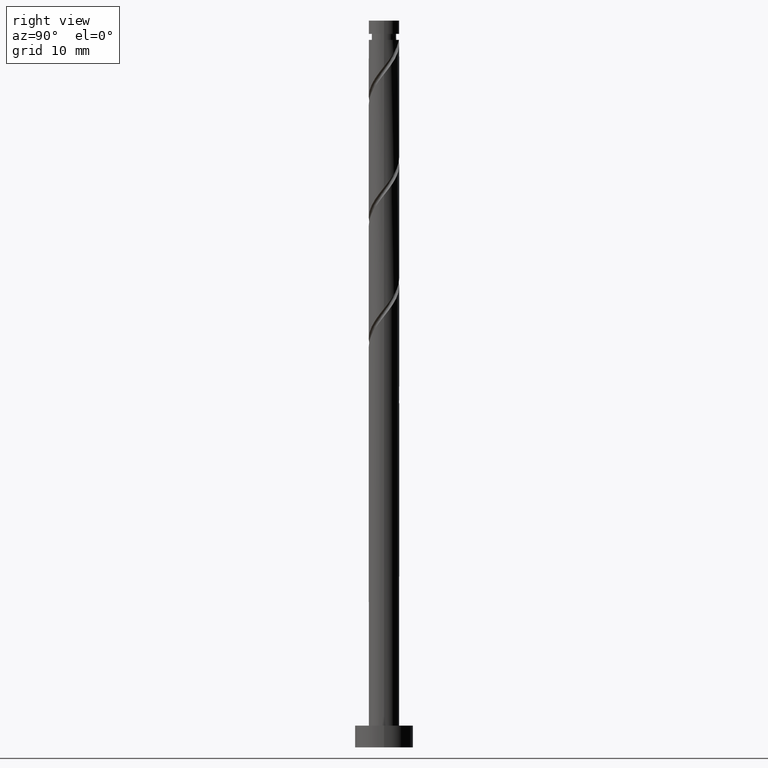
[diagram: clean part render]
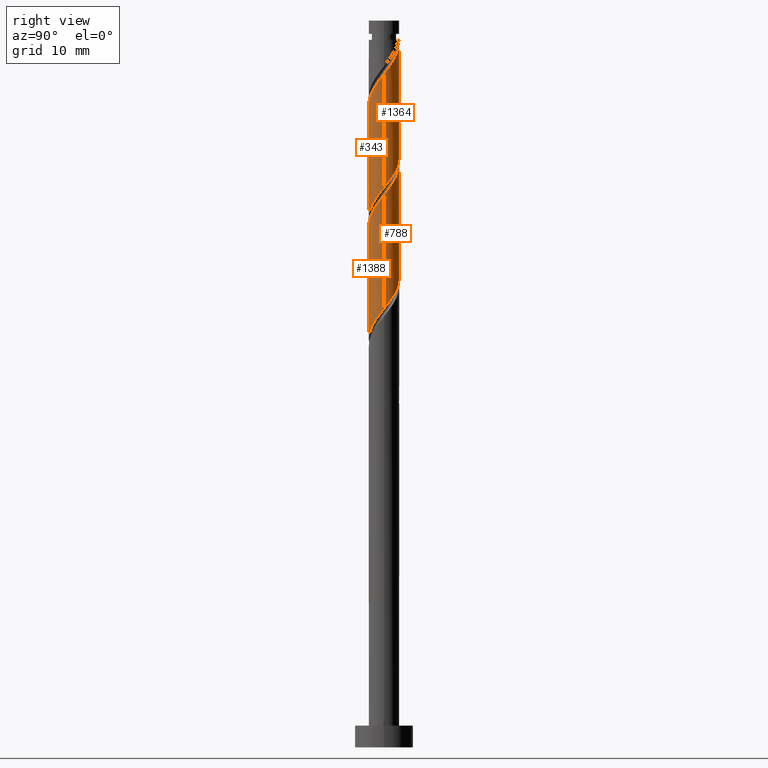
[diagram: same view with one multi-face feature highlighted, each face labeled with its STEP entity id]
A machine part, right view. The highlighted faces form ONE feature: a constant-radius fillet chain: 4 tangent blend faces with common blend radius 2.1 mm. The faces share edges in the B-rep.
Their STEP definitions:
[1] entity #1388 (Cylinder):
#12 = CARTESIAN_POINT ( 'NONE',  ( 0.6773835311792414382, -2.021945538802111031, 57.06142949373632689 ) ) ;
#19 = ORIENTED_EDGE ( 'NONE', *, *, #1257, .F. ) ;
#22 = EDGE_CURVE ( 'NONE', #1061, #295, #1283, .T. ) ;
#29 = CARTESIAN_POINT ( 'NONE',  ( 1.002730969924035209, -1.845137014412534748, 57.52439245669927459 ) ) ;
#33 = CARTESIAN_POINT ( 'NONE',  ( -0.6773835311792429925, -2.021945538802113251, 70.95031838262519841 ) ) ;
#117 = EDGE_LOOP ( 'NONE', ( #273, #19, #1396, #164 ) ) ;
#122 = CARTESIAN_POINT ( 'NONE',  ( 1.991227642780767360, -0.6670925532681063475, 75.11698504929184139 ) ) ;
#130 = CARTESIAN_POINT ( 'NONE',  ( -1.873601227009899617, -1.018199711422870468, 53.35772579003261740 ) ) ;
#150 = CARTESIAN_POINT ( 'NONE',  ( -2.089747967260866535, -0.4243414232946238762, 68.17254060484742695 ) ) ;
#164 = ORIENTED_EDGE ( 'NONE', *, *, #290, .F. ) ;
#208 = VECTOR ( 'NONE', #1422, 1000.000000000000000 ) ;
#217 = CARTESIAN_POINT ( 'NONE',  ( 1.096570042982212945, -1.790959000321894923, 73.26513319744000796 ) ) ;
#226 = CARTESIAN_POINT ( 'NONE',  ( 2.100000000000002309, -1.609673645427794455E-15, 75.97501904985867327 ) ) ;
#253 = VERTEX_POINT ( 'NONE', #956 ) ;
#255 = CARTESIAN_POINT ( 'NONE',  ( 2.100000000000000089, -0.02709351609724165028, 60.33604478590382314 ) ) ;
#259 = CARTESIAN_POINT ( 'NONE',  ( 0.05501379728675846043, -2.131686114863705406, 71.87624430855112223 ) ) ;
#269 = CARTESIAN_POINT ( 'NONE',  ( -0.7807756498828020142, -1.984313885136296918, 55.20957764188447925 ) ) ;
#273 = ORIENTED_EDGE ( 'NONE', *, *, #22, .F. ) ;
#282 = FACE_OUTER_BOUND ( 'NONE', #117, .T. ) ;
#290 = EDGE_CURVE ( 'NONE', #295, #253, #509, .T. ) ;
#295 = VERTEX_POINT ( 'NONE', #362 ) ;
#344 = CARTESIAN_POINT ( 'NONE',  ( 0.4178947235847804698, -2.058000000000002938, 72.33920727151411256 ) ) ;
#362 = CARTESIAN_POINT ( 'NONE',  ( 2.100000000000000089, 2.427582063870240071E-16, 60.37006215983619484 ) ) ;
#367 = CARTESIAN_POINT ( 'NONE',  ( -2.100000000000000089, -0.3424141808229617112, 52.46664833886848811 ) ) ;
#387 = CARTESIAN_POINT ( 'NONE',  ( 2.100000000000004974, -0.3424141808229554940, 75.54509953749304429 ) ) ;
#396 =( BOUNDED_CURVE ( )  B_SPLINE_CURVE ( 2, ( #922, #587, #847, #150, #495, #619, #705, #1258, #1157, #33, #1305, #259, #344, #454, #217, #1074, #1266, #728, #122, #387, #226 ),
 .UNSPECIFIED., .F., .T. ) 
 B_SPLINE_CURVE_WITH_KNOTS ( ( 3, 2, 2, 2, 2, 2, 2, 2, 2, 2, 3 ),
 ( 0.3045248053855288406, 0.3055555555555555802, 0.3194444444444444198, 0.3333333333333333703, 0.3472222222222222099, 0.3611111111111111605, 0.3750000000000000000, 0.3888888888888888395, 0.4027777777777777901, 0.4166666666666666297, 0.4295248053855292847 ),
 .UNSPECIFIED. ) 
 CURVE ( )  GEOMETRIC_REPRESENTATION_ITEM ( )  RATIONAL_B_SPLINE_CURVE ( ( 0.9071930855141268069, 0.9080659294509745294, 0.9090909090909148338, 0.8952797754656494078, 0.9090909090909148338, 0.8952797754656494078, 0.9090909090909148338, 0.8952797754656494078, 0.9090909090909148338, 0.8952797754656494078, 0.9090909090909148338, 0.8952797754656494078, 0.9090909090909148338, 0.8952797754656494078, 0.9090909090909148338, 0.8952797754656494078, 0.9090909090909148338, 0.8952797754656494078, 0.9090909090909148338, 0.8963047551055892681, 0.9071930855141274730 ) ) 
 REPRESENTATION_ITEM ( '' )  );
#403 = DIRECTION ( 'NONE',  ( -1.000000000000000000, 0.000000000000000000, 0.000000000000000000 ) ) ;
#430 = EDGE_CURVE ( 'NONE', #558, #253, #1079, .T. ) ;
#454 = CARTESIAN_POINT ( 'NONE',  ( 0.7807756498828013481, -1.984313885136300692, 72.80217023447704605 ) ) ;
#473 = CARTESIAN_POINT ( 'NONE',  ( -1.642982831545760636, -1.307901913465178589, 53.82068875299557931 ) ) ;
#485 = CARTESIAN_POINT ( 'NONE',  ( -1.991227642780765139, -0.6670925532681040160, 52.89476282706964838 ) ) ;
#495 = CARTESIAN_POINT ( 'NONE',  ( -1.954167698492004446, -0.7689139133677288518, 68.63550356781040307 ) ) ;
#509 =( BOUNDED_CURVE ( )  B_SPLINE_CURVE ( 2, ( #736, #255, #1406, #1401, #1187, #596, #849, #725, #29, #12, #1303, #1292, #947, #269, #1296, #1181, #473, #130, #485, #367, #1395 ),
 .UNSPECIFIED., .F., .T. ) 
 B_SPLINE_CURVE_WITH_KNOTS ( ( 3, 2, 2, 2, 2, 2, 2, 2, 2, 2, 3 ),
 ( 0.8045248053855289516, 0.8055555555555555802, 0.8194444444444444198, 0.8333333333333333703, 0.8472222222222222099, 0.8611111111111111605, 0.8750000000000000000, 0.8888888888888888395, 0.9027777777777777901, 0.9166666666666666297, 0.9295248053855289516 ),
 .UNSPECIFIED. ) 
 CURVE ( )  GEOMETRIC_REPRESENTATION_ITEM ( )  RATIONAL_B_SPLINE_CURVE ( ( 0.9071930855141209227, 0.9080659294509686452, 0.9090909090909088386, 0.8952797754656434126, 0.9090909090909088386, 0.8952797754656434126, 0.9090909090909088386, 0.8952797754656434126, 0.9090909090909088386, 0.8952797754656434126, 0.9090909090909088386, 0.8952797754656434126, 0.9090909090909088386, 0.8952797754656434126, 0.9090909090909088386, 0.8952797754656434126, 0.9090909090909088386, 0.8952797754656434126, 0.9090909090909088386, 0.8963047551055836060, 0.9071930855141209227 ) ) 
 REPRESENTATION_ITEM ( '' )  );
#558 = VERTEX_POINT ( 'NONE', #1267 ) ;
#562 = CARTESIAN_POINT ( 'NONE',  ( 2.100000000000002309, -1.609673645427794455E-15, 75.97501904985867327 ) ) ;
#587 = CARTESIAN_POINT ( 'NONE',  ( -2.100000000000002309, -0.02709351609723746959, 67.67570309045768795 ) ) ;
#596 = CARTESIAN_POINT ( 'NONE',  ( 1.818587429723140136, -1.113486403440834049, 58.91328134558818164 ) ) ;
#619 = CARTESIAN_POINT ( 'NONE',  ( -1.818587429723142801, -1.113486403440834493, 69.09846653077333656 ) ) ;
#625 = VECTOR ( 'NONE', #1195, 1000.000000000000000 ) ;
#705 = CARTESIAN_POINT ( 'NONE',  ( -1.573332919195987056, -1.390907446731896924, 69.56142949373634110 ) ) ;
#725 = CARTESIAN_POINT ( 'NONE',  ( 1.328078408668829313, -1.668328490022959576, 57.98735541966225071 ) ) ;
#728 = CARTESIAN_POINT ( 'NONE',  ( 1.873601227009901615, -1.018199711422872689, 74.65402208632890790 ) ) ;
#736 = CARTESIAN_POINT ( 'NONE',  ( 2.100000000000000089, 2.427582063870240071E-16, 60.37006215983619484 ) ) ;
#771 = DIRECTION ( 'NONE',  ( -0.000000000000000000, -0.000000000000000000, -1.000000000000000000 ) ) ;
#825 = AXIS2_PLACEMENT_3D ( 'NONE', #1082, #771, #403 ) ;
#847 = CARTESIAN_POINT ( 'NONE',  ( -2.099301012906249042, -0.05417801409064230272, 67.70957764188445083 ) ) ;
#849 = CARTESIAN_POINT ( 'NONE',  ( 1.573332919195984614, -1.390907446731896702, 58.45031838262521262 ) ) ;
#922 = CARTESIAN_POINT ( 'NONE',  ( -2.100000000000002309, 1.583530453970730612E-15, 67.64168571652533046 ) ) ;
#947 = CARTESIAN_POINT ( 'NONE',  ( -0.4178947235847806918, -2.058000000000000274, 55.67254060484741984 ) ) ;
#956 = CARTESIAN_POINT ( 'NONE',  ( -2.100000000000000089, -1.053197141556011725E-15, 52.03672882650285914 ) ) ;
#994 = CYLINDRICAL_SURFACE ( 'NONE', #825, 2.100000000000000089 ) ;
#1061 = VERTEX_POINT ( 'NONE', #562 ) ;
#1074 = CARTESIAN_POINT ( 'NONE',  ( 1.412364436081622543, -1.597604115507490263, 73.72809616040296987 ) ) ;
#1079 = LINE ( 'NONE', #1433, #625 ) ;
#1082 = CARTESIAN_POINT ( 'NONE',  ( 0.000000000000000000, 0.000000000000000000, 100.0000000000000000 ) ) ;
#1157 = CARTESIAN_POINT ( 'NONE',  ( -1.002730969924037874, -1.845137014412537191, 70.48735541966226492 ) ) ;
#1181 = CARTESIAN_POINT ( 'NONE',  ( -1.412364436081621433, -1.597604115507487599, 54.28365171595855543 ) ) ;
#1187 = CARTESIAN_POINT ( 'NONE',  ( 1.954167698492001781, -0.7689139133677278526, 59.37624430855113644 ) ) ;
#1195 = DIRECTION ( 'NONE',  ( -0.000000000000000000, -0.000000000000000000, -1.000000000000000000 ) ) ;
#1257 = EDGE_CURVE ( 'NONE', #558, #1061, #396, .T. ) ;
#1258 = CARTESIAN_POINT ( 'NONE',  ( -1.328078408668831090, -1.668328490022961574, 70.02439245669927459 ) ) ;
#1266 = CARTESIAN_POINT ( 'NONE',  ( 1.642982831545762190, -1.307901913465180810, 74.19105912336593178 ) ) ;
#1267 = CARTESIAN_POINT ( 'NONE',  ( -2.100000000000002309, 1.583530453970730612E-15, 67.64168571652533046 ) ) ;
#1283 = LINE ( 'NONE', #1290, #208 ) ;
#1290 = CARTESIAN_POINT ( 'NONE',  ( 2.100000000000000089, 2.571758278209441464E-16, 100.0000000000000000 ) ) ;
#1292 = CARTESIAN_POINT ( 'NONE',  ( -0.05501379728676022984, -2.131686114863703185, 56.13550356781038886 ) ) ;
#1296 = CARTESIAN_POINT ( 'NONE',  ( -1.096570042982211612, -1.790959000321892480, 54.74661467892150313 ) ) ;
#1303 = CARTESIAN_POINT ( 'NONE',  ( 0.3111848669462410899, -2.076815826832907330, 56.59846653077335787 ) ) ;
#1305 = CARTESIAN_POINT ( 'NONE',  ( -0.3111848669462424222, -2.076815826832910439, 71.41328134558818874 ) ) ;
#1388 = ADVANCED_FACE ( 'NONE', ( #282 ), #994, .T. ) ;
#1395 = CARTESIAN_POINT ( 'NONE',  ( -2.100000000000000089, -1.053197141556011922E-15, 52.03672882650285203 ) ) ;
#1396 = ORIENTED_EDGE ( 'NONE', *, *, #430, .T. ) ;
#1401 = CARTESIAN_POINT ( 'NONE',  ( 2.089747967260863870, -0.4243414232946239317, 59.83920727151409125 ) ) ;
#1406 = CARTESIAN_POINT ( 'NONE',  ( 2.099301012906246822, -0.05417801409064348928, 60.30217023447706026 ) ) ;
#1422 = DIRECTION ( 'NONE',  ( -0.000000000000000000, -0.000000000000000000, -1.000000000000000000 ) ) ;
#1433 = CARTESIAN_POINT ( 'NONE',  ( -2.100000000000000089, 0.000000000000000000, 100.0000000000000000 ) ) ;
[2] entity #788 (Cylinder):
#10 = CARTESIAN_POINT ( 'NONE',  ( -1.642982831545762190, 1.307901913465180810, 82.52439245669928880 ) ) ;
#22 = EDGE_CURVE ( 'NONE', #1061, #295, #1283, .T. ) ;
#59 = FACE_OUTER_BOUND ( 'NONE', #1278, .T. ) ;
#62 = VECTOR ( 'NONE', #1060, 1000.000000000000000 ) ;
#97 = CARTESIAN_POINT ( 'NONE',  ( 1.096570042982212279, 1.790959000321891592, 63.07994801225483172 ) ) ;
#135 = LINE ( 'NONE', #834, #62 ) ;
#137 = ORIENTED_EDGE ( 'NONE', *, *, #333, .F. ) ;
#200 = CARTESIAN_POINT ( 'NONE',  ( 2.100000000000000089, 2.427582063870240071E-16, 60.37006215983619484 ) ) ;
#208 = VECTOR ( 'NONE', #1422, 1000.000000000000000 ) ;
#211 = CARTESIAN_POINT ( 'NONE',  ( -1.818587429723140136, 1.113486403440832717, 67.24661467892153155 ) ) ;
#218 = CARTESIAN_POINT ( 'NONE',  ( 1.991227642780765139, 0.6670925532681044601, 61.22809616040296277 ) ) ;
#227 = CARTESIAN_POINT ( 'NONE',  ( -2.099999999999999645, 0.02709351609724086965, 68.66937811923716595 ) ) ;
#235 = CARTESIAN_POINT ( 'NONE',  ( -2.100000000000002753, 0.3424141808229603234, 83.87843287082637289 ) ) ;
#295 = VERTEX_POINT ( 'NONE', #362 ) ;
#319 = CARTESIAN_POINT ( 'NONE',  ( -1.954167698492001781, 0.7689139133677279636, 67.70957764188446504 ) ) ;
#328 = CARTESIAN_POINT ( 'NONE',  ( 2.100000000000002309, -1.609673645427794455E-15, 75.97501904985867327 ) ) ;
#333 = EDGE_CURVE ( 'NONE', #1166, #826, #135, .T. ) ;
#353 = CARTESIAN_POINT ( 'NONE',  ( -0.7807756498828021252, 1.984313885136300248, 81.13550356781043149 ) ) ;
#362 = CARTESIAN_POINT ( 'NONE',  ( 2.100000000000000089, 2.427582063870240071E-16, 60.37006215983619484 ) ) ;
#370 = ORIENTED_EDGE ( 'NONE', *, *, #593, .F. ) ;
#429 = CARTESIAN_POINT ( 'NONE',  ( 0.6773835311792442138, 2.021945538802112363, 79.28365171595852701 ) ) ;
#436 = CARTESIAN_POINT ( 'NONE',  ( -2.100000000000002309, -1.120422491017026218E-15, 84.30835238319200187 ) ) ;
#446 = CARTESIAN_POINT ( 'NONE',  ( 0.4178947235847808583, 2.058000000000000274, 64.00587393818075554 ) ) ;
#464 = CARTESIAN_POINT ( 'NONE',  ( 0.7807756498828013481, 1.984313885136297362, 63.54291097521780074 ) ) ;
#519 = DIRECTION ( 'NONE',  ( -0.000000000000000000, -0.000000000000000000, -1.000000000000000000 ) ) ;
#547 = CARTESIAN_POINT ( 'NONE',  ( 2.099301012906249042, 0.05417801409064245538, 76.04291097521779363 ) ) ;
#555 = CARTESIAN_POINT ( 'NONE',  ( 1.573332919195986834, 1.390907446731897590, 77.89476282706964128 ) ) ;
#562 = CARTESIAN_POINT ( 'NONE',  ( 2.100000000000002309, -1.609673645427794455E-15, 75.97501904985867327 ) ) ;
#570 = CARTESIAN_POINT ( 'NONE',  ( 1.873601227009899839, 1.018199711422870246, 61.69105912336593889 ) ) ;
#588 = CARTESIAN_POINT ( 'NONE',  ( -1.873601227009902059, 1.018199711422872467, 82.98735541966225071 ) ) ;
#593 = EDGE_CURVE ( 'NONE', #826, #295, #607, .T. ) ;
#607 =( BOUNDED_CURVE ( )  B_SPLINE_CURVE ( 2, ( #699, #227, #1259, #808, #319, #211, #791, #1126, #1037, #1005, #1471, #1148, #446, #464, #97, #923, #1358, #570, #218, #1027, #200 ),
 .UNSPECIFIED., .F., .T. ) 
 B_SPLINE_CURVE_WITH_KNOTS ( ( 3, 2, 2, 2, 2, 2, 2, 2, 2, 2, 3 ),
 ( 0.6795248053855289516, 0.6805555555555555802, 0.6944444444444444198, 0.7083333333333333703, 0.7222222222222222099, 0.7361111111111111605, 0.7500000000000000000, 0.7638888888888888395, 0.7777777777777777901, 0.7916666666666666297, 0.8045248053855289516 ),
 .UNSPECIFIED. ) 
 CURVE ( )  GEOMETRIC_REPRESENTATION_ITEM ( )  RATIONAL_B_SPLINE_CURVE ( ( 0.9071930855141209227, 0.9080659294509686452, 0.9090909090909088386, 0.8952797754656434126, 0.9090909090909088386, 0.8952797754656434126, 0.9090909090909088386, 0.8952797754656434126, 0.9090909090909088386, 0.8952797754656434126, 0.9090909090909088386, 0.8952797754656434126, 0.9090909090909088386, 0.8952797754656434126, 0.9090909090909088386, 0.8952797754656434126, 0.9090909090909088386, 0.8952797754656434126, 0.9090909090909088386, 0.8963047551055836060, 0.9071930855141209227 ) ) 
 REPRESENTATION_ITEM ( '' )  );
#637 = EDGE_CURVE ( 'NONE', #1061, #1166, #1421, .T. ) ;
#682 = CARTESIAN_POINT ( 'NONE',  ( 2.100000000000002309, 0.02709351609724920326, 76.00903642379103076 ) ) ;
#699 = CARTESIAN_POINT ( 'NONE',  ( -2.100000000000000089, -1.053197141556011922E-15, 68.70339549316953764 ) ) ;
#707 = CARTESIAN_POINT ( 'NONE',  ( -1.412364436081622765, 1.597604115507490041, 82.06142949373634110 ) ) ;
#783 = CARTESIAN_POINT ( 'NONE',  ( 1.002730969924038096, 1.845137014412537191, 78.82068875299557931 ) ) ;
#788 = ADVANCED_FACE ( 'NONE', ( #59 ), #1417, .T. ) ;
#791 = CARTESIAN_POINT ( 'NONE',  ( -1.573332919195984614, 1.390907446731896036, 66.78365171595854122 ) ) ;
#808 = CARTESIAN_POINT ( 'NONE',  ( -2.089747967260863870, 0.4243414232946237097, 68.17254060484742695 ) ) ;
#816 = CARTESIAN_POINT ( 'NONE',  ( -1.096570042982212945, 1.790959000321894701, 81.59846653077336498 ) ) ;
#826 = VERTEX_POINT ( 'NONE', #1227 ) ;
#834 = CARTESIAN_POINT ( 'NONE',  ( -2.100000000000000089, 0.000000000000000000, 100.0000000000000000 ) ) ;
#867 = AXIS2_PLACEMENT_3D ( 'NONE', #983, #519, #1434 ) ;
#923 = CARTESIAN_POINT ( 'NONE',  ( 1.412364436081622543, 1.597604115507486933, 62.61698504929189113 ) ) ;
#933 = CARTESIAN_POINT ( 'NONE',  ( 0.3111848669462436434, 2.076815826832909551, 79.74661467892150313 ) ) ;
#939 = CARTESIAN_POINT ( 'NONE',  ( -1.991227642780767360, 0.6670925532681057923, 83.45031838262518420 ) ) ;
#983 = CARTESIAN_POINT ( 'NONE',  ( 0.000000000000000000, 0.000000000000000000, 100.0000000000000000 ) ) ;
#1005 = CARTESIAN_POINT ( 'NONE',  ( -0.6773835311792417713, 2.021945538802111031, 65.39476282706966970 ) ) ;
#1011 = CARTESIAN_POINT ( 'NONE',  ( -0.05501379728675910574, 2.131686114863705406, 80.20957764188446504 ) ) ;
#1019 = CARTESIAN_POINT ( 'NONE',  ( 1.818587429723142801, 1.113486403440832717, 77.43179986410669358 ) ) ;
#1027 = CARTESIAN_POINT ( 'NONE',  ( 2.100000000000000089, 0.3424141808229607120, 60.79998167220180960 ) ) ;
#1037 = CARTESIAN_POINT ( 'NONE',  ( -1.002730969924035209, 1.845137014412534748, 65.85772579003261740 ) ) ;
#1060 = DIRECTION ( 'NONE',  ( -0.000000000000000000, -0.000000000000000000, -1.000000000000000000 ) ) ;
#1061 = VERTEX_POINT ( 'NONE', #562 ) ;
#1078 = ORIENTED_EDGE ( 'NONE', *, *, #22, .T. ) ;
#1126 = CARTESIAN_POINT ( 'NONE',  ( -1.328078408668829313, 1.668328490022959354, 66.32068875299557931 ) ) ;
#1133 = CARTESIAN_POINT ( 'NONE',  ( 1.954167698492004890, 0.7689139133677279636, 76.96883690114373167 ) ) ;
#1148 = CARTESIAN_POINT ( 'NONE',  ( 0.05501379728675943881, 2.131686114863702741, 64.46883690114374588 ) ) ;
#1166 = VERTEX_POINT ( 'NONE', #436 ) ;
#1227 = CARTESIAN_POINT ( 'NONE',  ( -2.100000000000000089, -1.053197141556011725E-15, 68.70339549316953764 ) ) ;
#1259 = CARTESIAN_POINT ( 'NONE',  ( -2.099301012906246378, 0.05417801409064274681, 68.63550356781040307 ) ) ;
#1262 = ORIENTED_EDGE ( 'NONE', *, *, #637, .F. ) ;
#1274 = CARTESIAN_POINT ( 'NONE',  ( -2.100000000000002309, -1.120422491017026218E-15, 84.30835238319200187 ) ) ;
#1278 = EDGE_LOOP ( 'NONE', ( #1262, #1078, #370, #137 ) ) ;
#1283 = LINE ( 'NONE', #1290, #208 ) ;
#1290 = CARTESIAN_POINT ( 'NONE',  ( 2.100000000000000089, 2.571758278209441464E-16, 100.0000000000000000 ) ) ;
#1358 = CARTESIAN_POINT ( 'NONE',  ( 1.642982831545760636, 1.307901913465178367, 62.15402208632892211 ) ) ;
#1375 = CARTESIAN_POINT ( 'NONE',  ( 1.328078408668831534, 1.668328490022961130, 78.35772579003261740 ) ) ;
#1417 = CYLINDRICAL_SURFACE ( 'NONE', #867, 2.100000000000000089 ) ;
#1421 =( BOUNDED_CURVE ( )  B_SPLINE_CURVE ( 2, ( #328, #682, #547, #1454, #1133, #1019, #555, #1375, #783, #429, #933, #1011, #1462, #353, #816, #707, #10, #588, #939, #235, #1274 ),
 .UNSPECIFIED., .F., .T. ) 
 B_SPLINE_CURVE_WITH_KNOTS ( ( 3, 2, 2, 2, 2, 2, 2, 2, 2, 2, 3 ),
 ( 0.4295248053855292847, 0.4305555555555555802, 0.4444444444444444198, 0.4583333333333333703, 0.4722222222222222099, 0.4861111111111111605, 0.5000000000000000000, 0.5138888888888888395, 0.5277777777777777901, 0.5416666666666667407, 0.5545248053855290626 ),
 .UNSPECIFIED. ) 
 CURVE ( )  GEOMETRIC_REPRESENTATION_ITEM ( )  RATIONAL_B_SPLINE_CURVE ( ( 0.9071930855141274730, 0.9080659294509749735, 0.9090909090909148338, 0.8952797754656494078, 0.9090909090909148338, 0.8952797754656494078, 0.9090909090909148338, 0.8952797754656494078, 0.9090909090909148338, 0.8952797754656494078, 0.9090909090909148338, 0.8952797754656494078, 0.9090909090909148338, 0.8952797754656494078, 0.9090909090909148338, 0.8952797754656494078, 0.9090909090909148338, 0.8952797754656494078, 0.9090909090909148338, 0.8963047551055894901, 0.9071930855141271399 ) ) 
 REPRESENTATION_ITEM ( '' )  );
#1422 = DIRECTION ( 'NONE',  ( -0.000000000000000000, -0.000000000000000000, -1.000000000000000000 ) ) ;
#1434 = DIRECTION ( 'NONE',  ( -1.000000000000000000, 0.000000000000000000, 0.000000000000000000 ) ) ;
#1454 = CARTESIAN_POINT ( 'NONE',  ( 2.089747967260866535, 0.4243414232946234876, 76.50587393818072712 ) ) ;
#1462 = CARTESIAN_POINT ( 'NONE',  ( -0.4178947235847802477, 2.058000000000002938, 80.67254060484744116 ) ) ;
#1471 = CARTESIAN_POINT ( 'NONE',  ( -0.3111848669462412009, 2.076815826832907330, 64.93179986410667937 ) ) ;
[3] entity #343 (Cylinder):
#2 = CARTESIAN_POINT ( 'NONE',  ( -1.096570042982211612, -1.790959000321892480, 71.41328134558817453 ) ) ;
#9 = CARTESIAN_POINT ( 'NONE',  ( 2.100000000000000977, -0.3424141808229670958, 92.21176620415972991 ) ) ;
#21 = FACE_OUTER_BOUND ( 'NONE', #1173, .T. ) ;
#62 = VECTOR ( 'NONE', #1060, 1000.000000000000000 ) ;
#65 = CARTESIAN_POINT ( 'NONE',  ( -2.100000000000002309, -1.120422491017026218E-15, 84.30835238319200187 ) ) ;
#73 = CARTESIAN_POINT ( 'NONE',  ( 0.7807756498828013481, -1.984313885136300692, 89.46883690114373167 ) ) ;
#82 = CARTESIAN_POINT ( 'NONE',  ( 1.954167698492001781, -0.7689139133677278526, 76.04291097521779363 ) ) ;
#90 = CARTESIAN_POINT ( 'NONE',  ( -2.100000000000000089, -1.053197141556011922E-15, 68.70339549316953764 ) ) ;
#93 = ORIENTED_EDGE ( 'NONE', *, *, #544, .F. ) ;
#98 = EDGE_CURVE ( 'NONE', #1313, #266, #465, .T. ) ;
#104 = CARTESIAN_POINT ( 'NONE',  ( 0.3111848669462410899, -2.076815826832907330, 73.26513319744002217 ) ) ;
#135 = LINE ( 'NONE', #834, #62 ) ;
#184 = CARTESIAN_POINT ( 'NONE',  ( 0.05501379728675846043, -2.131686114863705406, 88.54291097521777942 ) ) ;
#192 = CARTESIAN_POINT ( 'NONE',  ( -1.002730969924037874, -1.845137014412537191, 87.15402208632890790 ) ) ;
#222 = ORIENTED_EDGE ( 'NONE', *, *, #333, .T. ) ;
#262 = CARTESIAN_POINT ( 'NONE',  ( 2.100000000000000089, 2.427582063870240071E-16, 77.03672882650286624 ) ) ;
#266 = VERTEX_POINT ( 'NONE', #262 ) ;
#300 = CARTESIAN_POINT ( 'NONE',  ( -1.818587429723142801, -1.113486403440834493, 85.76513319744003638 ) ) ;
#310 = CARTESIAN_POINT ( 'NONE',  ( 1.412364436081622543, -1.597604115507490263, 90.39476282706964128 ) ) ;
#320 = ORIENTED_EDGE ( 'NONE', *, *, #98, .F. ) ;
#333 = EDGE_CURVE ( 'NONE', #1166, #826, #135, .T. ) ;
#343 = ADVANCED_FACE ( 'NONE', ( #21 ), #501, .T. ) ;
#345 = CARTESIAN_POINT ( 'NONE',  ( -0.4178947235847806918, -2.058000000000000274, 72.33920727151411256 ) ) ;
#378 = DIRECTION ( 'NONE',  ( -0.000000000000000000, -0.000000000000000000, -1.000000000000000000 ) ) ;
#385 = DIRECTION ( 'NONE',  ( -1.000000000000000000, 0.000000000000000000, 0.000000000000000000 ) ) ;
#397 = CARTESIAN_POINT ( 'NONE',  ( 2.100000000000000089, 2.427582063870239578E-16, 77.03672882650286624 ) ) ;
#436 = CARTESIAN_POINT ( 'NONE',  ( -2.100000000000002309, -1.120422491017026218E-15, 84.30835238319200187 ) ) ;
#437 = CARTESIAN_POINT ( 'NONE',  ( -2.100000000000000089, -0.3424141808229617112, 69.13331500553513820 ) ) ;
#450 =( BOUNDED_CURVE ( )  B_SPLINE_CURVE ( 2, ( #397, #1321, #751, #1382, #82, #664, #899, #1351, #775, #915, #104, #563, #345, #1242, #2, #1367, #690, #1117, #456, #437, #90 ),
 .UNSPECIFIED., .F., .T. ) 
 B_SPLINE_CURVE_WITH_KNOTS ( ( 3, 2, 2, 2, 2, 2, 2, 2, 2, 2, 3 ),
 ( 0.5545248053855292847, 0.5555555555555555802, 0.5694444444444444198, 0.5833333333333333703, 0.5972222222222222099, 0.6111111111111111605, 0.6250000000000000000, 0.6388888888888888395, 0.6527777777777777901, 0.6666666666666666297, 0.6795248053855289516 ),
 .UNSPECIFIED. ) 
 CURVE ( )  GEOMETRIC_REPRESENTATION_ITEM ( )  RATIONAL_B_SPLINE_CURVE ( ( 0.9071930855141214778, 0.9080659294509689783, 0.9090909090909088386, 0.8952797754656434126, 0.9090909090909088386, 0.8952797754656434126, 0.9090909090909088386, 0.8952797754656434126, 0.9090909090909088386, 0.8952797754656434126, 0.9090909090909088386, 0.8952797754656434126, 0.9090909090909088386, 0.8952797754656434126, 0.9090909090909088386, 0.8952797754656434126, 0.9090909090909088386, 0.8952797754656434126, 0.9090909090909088386, 0.8963047551055836060, 0.9071930855141209227 ) ) 
 REPRESENTATION_ITEM ( '' )  );
#456 = CARTESIAN_POINT ( 'NONE',  ( -1.991227642780765139, -0.6670925532681040160, 69.56142949373629847 ) ) ;
#458 = DIRECTION ( 'NONE',  ( -0.000000000000000000, -0.000000000000000000, -1.000000000000000000 ) ) ;
#465 = LINE ( 'NONE', #1352, #1055 ) ;
#501 = CYLINDRICAL_SURFACE ( 'NONE', #1391, 2.100000000000000089 ) ;
#531 = CARTESIAN_POINT ( 'NONE',  ( -2.099301012906249042, -0.05417801409064230272, 84.37624430855112223 ) ) ;
#539 = CARTESIAN_POINT ( 'NONE',  ( -0.6773835311792429925, -2.021945538802113251, 87.61698504929188402 ) ) ;
#544 = EDGE_CURVE ( 'NONE', #266, #826, #450, .T. ) ;
#546 = CARTESIAN_POINT ( 'NONE',  ( -2.100000000000002309, -0.02709351609724310397, 84.34236975712434514 ) ) ;
#563 = CARTESIAN_POINT ( 'NONE',  ( -0.05501379728676022984, -2.131686114863703185, 72.80217023447707447 ) ) ;
#664 = CARTESIAN_POINT ( 'NONE',  ( 1.818587429723140136, -1.113486403440834049, 75.57994801225483172 ) ) ;
#690 = CARTESIAN_POINT ( 'NONE',  ( -1.642982831545760636, -1.307901913465178589, 70.48735541966225071 ) ) ;
#751 = CARTESIAN_POINT ( 'NONE',  ( 2.099301012906246822, -0.05417801409064348928, 76.96883690114374588 ) ) ;
#765 = CARTESIAN_POINT ( 'NONE',  ( -0.3111848669462424222, -2.076815826832910439, 88.07994801225487436 ) ) ;
#774 = CARTESIAN_POINT ( 'NONE',  ( 1.642982831545762190, -1.307901913465180810, 90.85772579003263161 ) ) ;
#775 = CARTESIAN_POINT ( 'NONE',  ( 1.002730969924035209, -1.845137014412534748, 74.19105912336594599 ) ) ;
#826 = VERTEX_POINT ( 'NONE', #1227 ) ;
#834 = CARTESIAN_POINT ( 'NONE',  ( -2.100000000000000089, 0.000000000000000000, 100.0000000000000000 ) ) ;
#881 = CARTESIAN_POINT ( 'NONE',  ( -2.089747967260866535, -0.4243414232946238762, 84.83920727151409835 ) ) ;
#889 = CARTESIAN_POINT ( 'NONE',  ( 1.096570042982212945, -1.790959000321894923, 89.93179986410670779 ) ) ;
#899 = CARTESIAN_POINT ( 'NONE',  ( 1.573332919195984614, -1.390907446731896702, 75.11698504929185560 ) ) ;
#915 = CARTESIAN_POINT ( 'NONE',  ( 0.6773835311792414382, -2.021945538802111031, 73.72809616040298408 ) ) ;
#963 = CARTESIAN_POINT ( 'NONE',  ( 0.000000000000000000, 0.000000000000000000, 100.0000000000000000 ) ) ;
#966 = CARTESIAN_POINT ( 'NONE',  ( 2.100000000000002309, 1.079340333013068666E-15, 92.64168571652534467 ) ) ;
#1055 = VECTOR ( 'NONE', #458, 1000.000000000000000 ) ;
#1060 = DIRECTION ( 'NONE',  ( -0.000000000000000000, -0.000000000000000000, -1.000000000000000000 ) ) ;
#1108 = CARTESIAN_POINT ( 'NONE',  ( 0.4178947235847804698, -2.058000000000002938, 89.00587393818074133 ) ) ;
#1117 = CARTESIAN_POINT ( 'NONE',  ( -1.873601227009899617, -1.018199711422870468, 70.02439245669928880 ) ) ;
#1166 = VERTEX_POINT ( 'NONE', #436 ) ;
#1169 = EDGE_CURVE ( 'NONE', #1166, #1313, #1342, .T. ) ;
#1173 = EDGE_LOOP ( 'NONE', ( #320, #1482, #222, #93 ) ) ;
#1191 = CARTESIAN_POINT ( 'NONE',  ( 1.991227642780767360, -0.6670925532681063475, 91.78365171595858385 ) ) ;
#1224 = CARTESIAN_POINT ( 'NONE',  ( -1.573332919195987056, -1.390907446731896924, 86.22809616040296987 ) ) ;
#1227 = CARTESIAN_POINT ( 'NONE',  ( -2.100000000000000089, -1.053197141556011725E-15, 68.70339549316953764 ) ) ;
#1233 = CARTESIAN_POINT ( 'NONE',  ( 1.873601227009901615, -1.018199711422872689, 91.32068875299557931 ) ) ;
#1242 = CARTESIAN_POINT ( 'NONE',  ( -0.7807756498828020142, -1.984313885136296918, 71.87624430855112223 ) ) ;
#1313 = VERTEX_POINT ( 'NONE', #966 ) ;
#1321 = CARTESIAN_POINT ( 'NONE',  ( 2.100000000000000089, -0.02709351609725041757, 77.00271145257052297 ) ) ;
#1334 = CARTESIAN_POINT ( 'NONE',  ( -1.954167698492004446, -0.7689139133677288518, 85.30217023447703184 ) ) ;
#1342 =( BOUNDED_CURVE ( )  B_SPLINE_CURVE ( 2, ( #65, #546, #531, #881, #1334, #300, #1224, #1453, #192, #539, #765, #184, #1108, #73, #889, #310, #774, #1233, #1191, #9, #1414 ),
 .UNSPECIFIED., .F., .T. ) 
 B_SPLINE_CURVE_WITH_KNOTS ( ( 3, 2, 2, 2, 2, 2, 2, 2, 2, 2, 3 ),
 ( 0.5545248053855290626, 0.5555555555555555802, 0.5694444444444444198, 0.5833333333333332593, 0.5972222222222222099, 0.6111111111111111605, 0.6250000000000000000, 0.6388888888888888395, 0.6527777777777777901, 0.6666666666666667407, 0.6795248053855288406 ),
 .UNSPECIFIED. ) 
 CURVE ( )  GEOMETRIC_REPRESENTATION_ITEM ( )  RATIONAL_B_SPLINE_CURVE ( ( 0.9071930855141271399, 0.9080659294509747514, 0.9090909090909148338, 0.8952797754656494078, 0.9090909090909148338, 0.8952797754656494078, 0.9090909090909148338, 0.8952797754656494078, 0.9090909090909148338, 0.8952797754656494078, 0.9090909090909148338, 0.8952797754656494078, 0.9090909090909148338, 0.8952797754656494078, 0.9090909090909148338, 0.8952797754656494078, 0.9090909090909148338, 0.8952797754656494078, 0.9090909090909148338, 0.8963047551055897122, 0.9071930855141266958 ) ) 
 REPRESENTATION_ITEM ( '' )  );
#1351 = CARTESIAN_POINT ( 'NONE',  ( 1.328078408668829313, -1.668328490022959576, 74.65402208632892211 ) ) ;
#1352 = CARTESIAN_POINT ( 'NONE',  ( 2.100000000000000089, 2.571758278209441464E-16, 100.0000000000000000 ) ) ;
#1367 = CARTESIAN_POINT ( 'NONE',  ( -1.412364436081621433, -1.597604115507487599, 70.95031838262521262 ) ) ;
#1382 = CARTESIAN_POINT ( 'NONE',  ( 2.089747967260863870, -0.4243414232946239317, 76.50587393818074133 ) ) ;
#1391 = AXIS2_PLACEMENT_3D ( 'NONE', #963, #378, #385 ) ;
#1414 = CARTESIAN_POINT ( 'NONE',  ( 2.100000000000002309, 1.079340333013068666E-15, 92.64168571652534467 ) ) ;
#1453 = CARTESIAN_POINT ( 'NONE',  ( -1.328078408668831090, -1.668328490022961574, 86.69105912336593178 ) ) ;
#1482 = ORIENTED_EDGE ( 'NONE', *, *, #1169, .F. ) ;
[4] entity #1364 (Cylinder):
#52 = CARTESIAN_POINT ( 'NONE',  ( 2.100000000000002753, 0.3424141808229521633, 77.46664833886849522 ) ) ;
#58 = CARTESIAN_POINT ( 'NONE',  ( -1.328078408668829313, 1.668328490022959354, 82.98735541966226492 ) ) ;
#64 = VECTOR ( 'NONE', #1329, 1000.000000000000000 ) ;
#67 = CARTESIAN_POINT ( 'NONE',  ( -2.100000000000000089, 0.000000000000000000, 97.33920727151409835 ) ) ;
#78 = DIRECTION ( 'NONE',  ( -1.000000000000000000, 0.000000000000000000, 0.000000000000000000 ) ) ;
#98 = EDGE_CURVE ( 'NONE', #1313, #266, #465, .T. ) ;
#100 = CARTESIAN_POINT ( 'NONE',  ( 1.818587429723142801, 1.113486403440832717, 94.09846653077336498 ) ) ;
#157 = DIRECTION ( 'NONE',  ( -0.000000000000000000, -0.000000000000000000, -1.000000000000000000 ) ) ;
#169 = CARTESIAN_POINT ( 'NONE',  ( -1.002730969924035209, 1.845137014412534748, 82.52439245669930301 ) ) ;
#202 = CARTESIAN_POINT ( 'NONE',  ( 0.6773835311792442138, 2.021945538802112363, 95.95031838262522683 ) ) ;
#204 =( BOUNDED_CURVE ( )  B_SPLINE_CURVE ( 2, ( #901, #433, #802, #810, #439, #100, #1353, #1360, #330, #202, #675, #1252, #213 ),
 .UNSPECIFIED., .F., .T. ) 
 B_SPLINE_CURVE_WITH_KNOTS ( ( 3, 2, 2, 2, 2, 2, 3 ),
 ( 0.6795248053855288406, 0.6805555555555555802, 0.6944444444444444198, 0.7083333333333332593, 0.7222222222222223209, 0.7361111111111112715, 0.7500000000000001110 ),
 .UNSPECIFIED. ) 
 CURVE ( )  GEOMETRIC_REPRESENTATION_ITEM ( )  RATIONAL_B_SPLINE_CURVE ( ( 0.9071930855141266958, 0.9080659294509745294, 0.9090909090909148338, 0.8952797754656494078, 0.9090909090909148338, 0.8952797754656494078, 0.9090909090909148338, 0.8952797754656494078, 0.9090909090909148338, 0.8952797754656494078, 0.9090909090909148338, 0.8952797754656492968, 0.9090909090909149448 ) ) 
 REPRESENTATION_ITEM ( '' )  );
#213 = CARTESIAN_POINT ( 'NONE',  ( -0.4178947235847655928, 2.058000000000002494, 97.33920727151409835 ) ) ;
#214 = VERTEX_POINT ( 'NONE', #550 ) ;
#228 = EDGE_CURVE ( 'NONE', #1313, #214, #204, .T. ) ;
#245 = EDGE_LOOP ( 'NONE', ( #800, #368, #1022, #1307, #796 ) ) ;
#258 = AXIS2_PLACEMENT_3D ( 'NONE', #1381, #352, #815 ) ;
#262 = CARTESIAN_POINT ( 'NONE',  ( 2.100000000000000089, 2.427582063870240071E-16, 77.03672882650286624 ) ) ;
#266 = VERTEX_POINT ( 'NONE', #262 ) ;
#294 = CARTESIAN_POINT ( 'NONE',  ( 1.096570042982212279, 1.790959000321891592, 79.74661467892151734 ) ) ;
#301 = CARTESIAN_POINT ( 'NONE',  ( 0.4178947235847808583, 2.058000000000000274, 80.67254060484742695 ) ) ;
#304 = CARTESIAN_POINT ( 'NONE',  ( 0.000000000000000000, 0.000000000000000000, 97.33920727151409835 ) ) ;
#311 = CARTESIAN_POINT ( 'NONE',  ( 1.991227642780765139, 0.6670925532681044601, 77.89476282706966970 ) ) ;
#330 = CARTESIAN_POINT ( 'NONE',  ( 1.002730969924038096, 1.845137014412537191, 95.48735541966223650 ) ) ;
#352 = DIRECTION ( 'NONE',  ( -0.000000000000000000, -0.000000000000000000, -1.000000000000000000 ) ) ;
#368 = ORIENTED_EDGE ( 'NONE', *, *, #98, .T. ) ;
#384 = EDGE_CURVE ( 'NONE', #836, #959, #1343, .T. ) ;
#406 = CARTESIAN_POINT ( 'NONE',  ( 0.05501379728675943881, 2.131686114863702741, 81.13550356781040307 ) ) ;
#421 = CARTESIAN_POINT ( 'NONE',  ( 1.642982831545760636, 1.307901913465178367, 78.82068875299559352 ) ) ;
#433 = CARTESIAN_POINT ( 'NONE',  ( 2.100000000000002309, 0.02709351609723731694, 92.67570309045770216 ) ) ;
#439 = CARTESIAN_POINT ( 'NONE',  ( 1.954167698492004890, 0.7689139133677279636, 93.63550356781037465 ) ) ;
#458 = DIRECTION ( 'NONE',  ( -0.000000000000000000, -0.000000000000000000, -1.000000000000000000 ) ) ;
#465 = LINE ( 'NONE', #1352, #1055 ) ;
#476 = EDGE_CURVE ( 'NONE', #959, #266, #669, .T. ) ;
#511 = CARTESIAN_POINT ( 'NONE',  ( -2.089747967260863870, 0.4243414232946237097, 84.83920727151409835 ) ) ;
#550 = CARTESIAN_POINT ( 'NONE',  ( -0.4178947235847655928, 2.058000000000002494, 97.33920727151409835 ) ) ;
#628 = CIRCLE ( 'NONE', #708, 2.100000000000000089 ) ;
#656 = CARTESIAN_POINT ( 'NONE',  ( -2.100000000000000089, -1.273546898122695168E-15, 85.37006215983618063 ) ) ;
#669 =( BOUNDED_CURVE ( )  B_SPLINE_CURVE ( 2, ( #656, #991, #1448, #511, #1335, #1085, #890, #58, #169, #998, #1416, #406, #301, #874, #294, #766, #421, #757, #311, #52, #1440 ),
 .UNSPECIFIED., .F., .T. ) 
 B_SPLINE_CURVE_WITH_KNOTS ( ( 3, 2, 2, 2, 2, 2, 2, 2, 2, 2, 3 ),
 ( 0.4295248053855290626, 0.4305555555555555802, 0.4444444444444444198, 0.4583333333333333148, 0.4722222222222222099, 0.4861111111111111049, 0.5000000000000000000, 0.5138888888888888395, 0.5277777777777777901, 0.5416666666666666297, 0.5545248053855292847 ),
 .UNSPECIFIED. ) 
 CURVE ( )  GEOMETRIC_REPRESENTATION_ITEM ( )  RATIONAL_B_SPLINE_CURVE ( ( 0.9071930855141210337, 0.9080659294509687562, 0.9090909090909088386, 0.8952797754656434126, 0.9090909090909088386, 0.8952797754656434126, 0.9090909090909088386, 0.8952797754656434126, 0.9090909090909088386, 0.8952797754656434126, 0.9090909090909088386, 0.8952797754656434126, 0.9090909090909088386, 0.8952797754656434126, 0.9090909090909088386, 0.8952797754656434126, 0.9090909090909088386, 0.8952797754656434126, 0.9090909090909088386, 0.8963047551055832729, 0.9071930855141214778 ) ) 
 REPRESENTATION_ITEM ( '' )  );
#675 = CARTESIAN_POINT ( 'NONE',  ( 0.3111848669462436434, 2.076815826832909551, 96.41328134558817453 ) ) ;
#708 = AXIS2_PLACEMENT_3D ( 'NONE', #304, #157, #78 ) ;
#757 = CARTESIAN_POINT ( 'NONE',  ( 1.873601227009899839, 1.018199711422870246, 78.35772579003260319 ) ) ;
#766 = CARTESIAN_POINT ( 'NONE',  ( 1.412364436081622543, 1.597604115507486933, 79.28365171595855543 ) ) ;
#796 = ORIENTED_EDGE ( 'NONE', *, *, #1463, .T. ) ;
#800 = ORIENTED_EDGE ( 'NONE', *, *, #228, .F. ) ;
#802 = CARTESIAN_POINT ( 'NONE',  ( 2.099301012906249042, 0.05417801409064245538, 92.70957764188447925 ) ) ;
#810 = CARTESIAN_POINT ( 'NONE',  ( 2.089747967260866535, 0.4243414232946234876, 93.17254060484745537 ) ) ;
#815 = DIRECTION ( 'NONE',  ( -1.000000000000000000, 0.000000000000000000, 0.000000000000000000 ) ) ;
#836 = VERTEX_POINT ( 'NONE', #67 ) ;
#874 = CARTESIAN_POINT ( 'NONE',  ( 0.7807756498828013481, 1.984313885136297362, 80.20957764188447925 ) ) ;
#890 = CARTESIAN_POINT ( 'NONE',  ( -1.573332919195984614, 1.390907446731896036, 83.45031838262521262 ) ) ;
#898 = CARTESIAN_POINT ( 'NONE',  ( -2.100000000000000089, -1.273546898122695168E-15, 85.37006215983618063 ) ) ;
#901 = CARTESIAN_POINT ( 'NONE',  ( 2.100000000000002309, 1.079340333013068666E-15, 92.64168571652534467 ) ) ;
#932 = FACE_OUTER_BOUND ( 'NONE', #245, .T. ) ;
#959 = VERTEX_POINT ( 'NONE', #898 ) ;
#966 = CARTESIAN_POINT ( 'NONE',  ( 2.100000000000002309, 1.079340333013068666E-15, 92.64168571652534467 ) ) ;
#976 = CARTESIAN_POINT ( 'NONE',  ( -2.100000000000000089, 0.000000000000000000, 100.0000000000000000 ) ) ;
#991 = CARTESIAN_POINT ( 'NONE',  ( -2.100000000000000089, 0.02709351609724366602, 85.33604478590386577 ) ) ;
#998 = CARTESIAN_POINT ( 'NONE',  ( -0.6773835311792417713, 2.021945538802111031, 82.06142949373632689 ) ) ;
#1022 = ORIENTED_EDGE ( 'NONE', *, *, #476, .F. ) ;
#1044 = CYLINDRICAL_SURFACE ( 'NONE', #258, 2.100000000000000089 ) ;
#1055 = VECTOR ( 'NONE', #458, 1000.000000000000000 ) ;
#1085 = CARTESIAN_POINT ( 'NONE',  ( -1.818587429723140136, 1.113486403440832717, 83.91328134558818874 ) ) ;
#1252 = CARTESIAN_POINT ( 'NONE',  ( -0.05501379728676207559, 2.131686114863705850, 96.87624430855113644 ) ) ;
#1307 = ORIENTED_EDGE ( 'NONE', *, *, #384, .F. ) ;
#1313 = VERTEX_POINT ( 'NONE', #966 ) ;
#1329 = DIRECTION ( 'NONE',  ( -0.000000000000000000, -0.000000000000000000, -1.000000000000000000 ) ) ;
#1335 = CARTESIAN_POINT ( 'NONE',  ( -1.954167698492001781, 0.7689139133677279636, 84.37624430855113644 ) ) ;
#1343 = LINE ( 'NONE', #976, #64 ) ;
#1352 = CARTESIAN_POINT ( 'NONE',  ( 2.100000000000000089, 2.571758278209441464E-16, 100.0000000000000000 ) ) ;
#1353 = CARTESIAN_POINT ( 'NONE',  ( 1.573332919195986834, 1.390907446731897590, 94.56142949373631268 ) ) ;
#1360 = CARTESIAN_POINT ( 'NONE',  ( 1.328078408668831534, 1.668328490022961130, 95.02439245669928880 ) ) ;
#1364 = ADVANCED_FACE ( 'NONE', ( #932 ), #1044, .T. ) ;
#1381 = CARTESIAN_POINT ( 'NONE',  ( 0.000000000000000000, 0.000000000000000000, 100.0000000000000000 ) ) ;
#1416 = CARTESIAN_POINT ( 'NONE',  ( -0.3111848669462412009, 2.076815826832907330, 81.59846653077333656 ) ) ;
#1440 = CARTESIAN_POINT ( 'NONE',  ( 2.100000000000000089, 2.427582063870239578E-16, 77.03672882650286624 ) ) ;
#1448 = CARTESIAN_POINT ( 'NONE',  ( -2.099301012906246378, 0.05417801409064274681, 85.30217023447706026 ) ) ;
#1463 = EDGE_CURVE ( 'NONE', #836, #214, #628, .T. ) ;